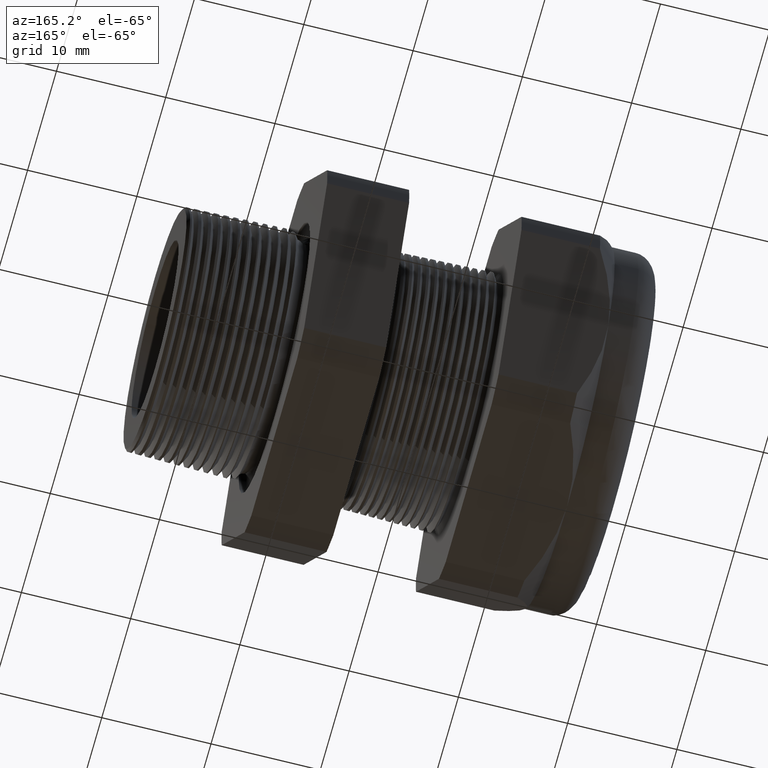
[diagram: clean part render]
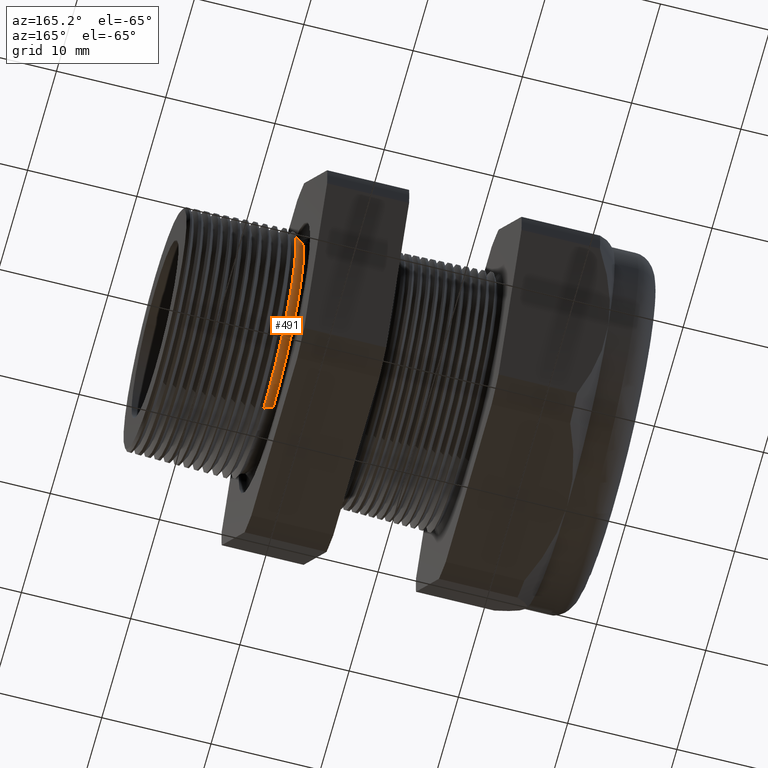
[diagram: same view with one face highlighted and labeled with its STEP entity id]
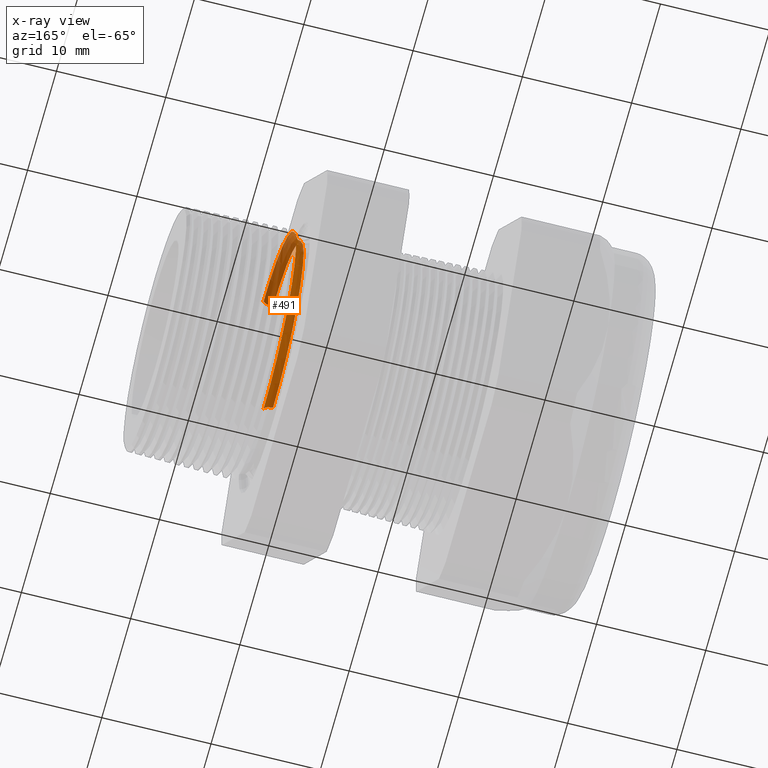
[diagram: x-ray of the same camera — body ghosted, the highlighted face saturated]
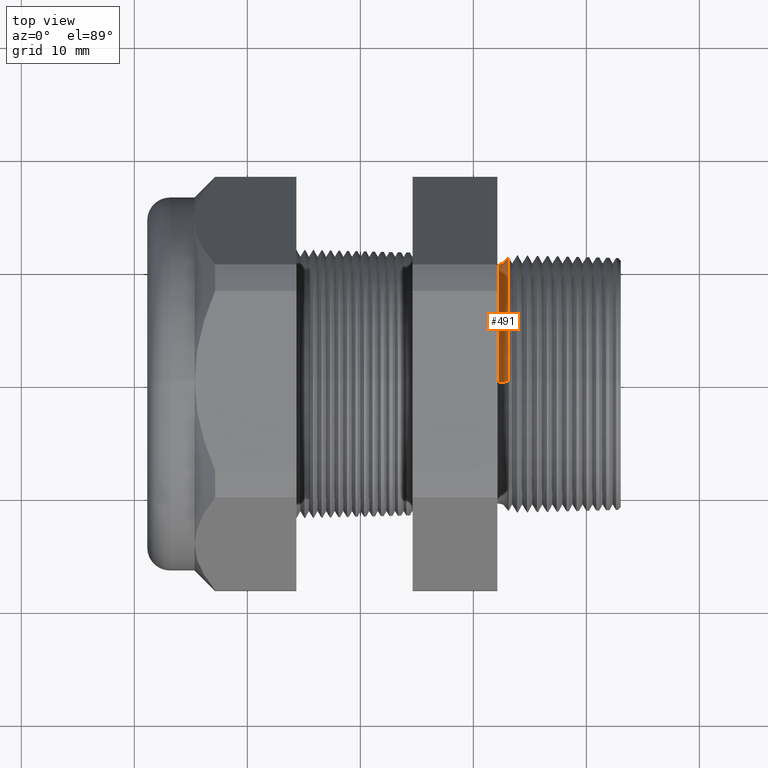
[diagram: same view with one face highlighted and labeled with its STEP entity id]
A machine part, auxiliary view. The second image highlights one B-rep face of the part: STEP entity #491.
The next image is the same camera in x-ray: the body ghosted, the highlighted face saturated — about 32% of this face is hidden behind the body in this view.
A second angle (top view) of the same face is appended — the face is thin or edge-on in the first view.
In plain terms, the highlighted toroidal blend (fillet) surface has major radius 11.4722 mm and minor (blend) radius 0.889 mm.
Its self-contained STEP definition (entity closure, byte-faithful):
#484 = ORIENTED_EDGE ( 'NONE', *, *, #485, .F. ) ;
#485 = EDGE_CURVE ( 'NONE', #486, #558, #1781, .T. ) ;
#486 = VERTEX_POINT ( 'NONE', #1774 ) ;
#487 = ORIENTED_EDGE ( 'NONE', *, *, #488, .F. ) ;
#488 = EDGE_CURVE ( 'NONE', #561, #486, #1772, .T. ) ;
#491 = ADVANCED_FACE ( 'NONE', ( #1773 ), #1766, .F. ) ;
#492 = EDGE_LOOP ( 'NONE', ( #559, #556, #484, #487 ) ) ;
#556 = ORIENTED_EDGE ( 'NONE', *, *, #557, .T. ) ;
#557 = EDGE_CURVE ( 'NONE', #562, #558, #1906, .T. ) ;
#558 = VERTEX_POINT ( 'NONE', #1901 ) ;
#559 = ORIENTED_EDGE ( 'NONE', *, *, #560, .T. ) ;
#560 = EDGE_CURVE ( 'NONE', #561, #562, #1965, .T. ) ;
#561 = VERTEX_POINT ( 'NONE', #1960 ) ;
#562 = VERTEX_POINT ( 'NONE', #1959 ) ;
#1766 = TOROIDAL_SURFACE ( 'NONE', #1834, 0.4516616073672216100, 0.03499999999999994800 ) ;
#1767 = CARTESIAN_POINT ( 'NONE',  ( -0.3049999999999999400, 0.0000000000000000000, 0.0000000000000000000 ) ) ;
#1768 = DIRECTION ( 'NONE',  ( 0.0000000000000000000, 0.0000000000000000000, 1.000000000000000000 ) ) ;
#1769 = DIRECTION ( 'NONE',  ( 1.000000000000000000, 0.0000000000000000000, 0.0000000000000000000 ) ) ;
#1770 = CARTESIAN_POINT ( 'NONE',  ( -0.2708463023710467300, 0.0000000000000000000, 0.0000000000000000000 ) ) ;
#1771 = AXIS2_PLACEMENT_3D ( 'NONE', #1770, #1769, #1768 ) ;
#1772 = CIRCLE ( 'NONE', #1771, 0.4440114480048295600 ) ;
#1773 = FACE_OUTER_BOUND ( 'NONE', #492, .T. ) ;
#1774 = CARTESIAN_POINT ( 'NONE',  ( -0.2708463023710467300, 0.0000000000000000000, 0.4440114480048295600 ) ) ;
#1775 = DIRECTION ( 'NONE',  ( 0.0000000000000000000, 1.224646799147352700E-016, 1.000000000000000000 ) ) ;
#1777 = DIRECTION ( 'NONE',  ( 0.0000000000000000000, 1.000000000000000000, -1.224646799147353200E-016 ) ) ;
#1778 = CARTESIAN_POINT ( 'NONE',  ( -0.3049999999999999400, 5.531259417600165900E-017, 0.4516616073672216100 ) ) ;
#1779 = AXIS2_PLACEMENT_3D ( 'NONE', #1778, #1777, #1775 ) ;
#1781 = CIRCLE ( 'NONE', #1779, 0.03499999999999996900 ) ;
#1832 = DIRECTION ( 'NONE',  ( 0.0000000000000000000, 0.0000000000000000000, -1.000000000000000000 ) ) ;
#1833 = DIRECTION ( 'NONE',  ( 1.000000000000000000, 0.0000000000000000000, 0.0000000000000000000 ) ) ;
#1834 = AXIS2_PLACEMENT_3D ( 'NONE', #1767, #1833, #1832 ) ;
#1901 = CARTESIAN_POINT ( 'NONE',  ( -0.3049999999999999400, 5.102633037898592000E-017, 0.4166616073672216300 ) ) ;
#1902 = DIRECTION ( 'NONE',  ( 0.0000000000000000000, 0.0000000000000000000, -1.000000000000000000 ) ) ;
#1903 = DIRECTION ( 'NONE',  ( 1.000000000000000000, 0.0000000000000000000, 0.0000000000000000000 ) ) ;
#1904 = CARTESIAN_POINT ( 'NONE',  ( -0.3049999999999999400, 0.0000000000000000000, 0.0000000000000000000 ) ) ;
#1905 = AXIS2_PLACEMENT_3D ( 'NONE', #1904, #1903, #1902 ) ;
#1906 = CIRCLE ( 'NONE', #1905, 0.4166616073672216300 ) ;
#1959 = CARTESIAN_POINT ( 'NONE',  ( -0.3049999999999999400, 0.0000000000000000000, -0.4166616073672216300 ) ) ;
#1960 = CARTESIAN_POINT ( 'NONE',  ( -0.2708463023710467300, 5.437571985838959600E-017, -0.4440114480048295600 ) ) ;
#1961 = DIRECTION ( 'NONE',  ( 0.0000000000000000000, 0.0000000000000000000, -1.000000000000000000 ) ) ;
#1962 = DIRECTION ( 'NONE',  ( 0.0000000000000000000, -1.000000000000000000, 0.0000000000000000000 ) ) ;
#1963 = CARTESIAN_POINT ( 'NONE',  ( -0.3049999999999999400, 0.0000000000000000000, -0.4516616073672216100 ) ) ;
#1964 = AXIS2_PLACEMENT_3D ( 'NONE', #1963, #1962, #1961 ) ;
#1965 = CIRCLE ( 'NONE', #1964, 0.03499999999999996900 ) ;